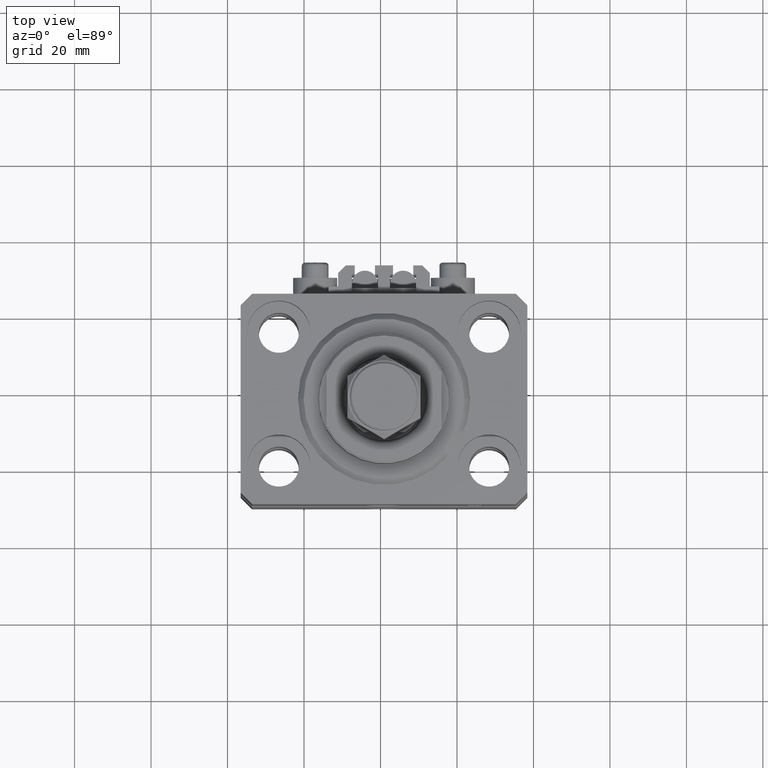
[diagram: clean part render]
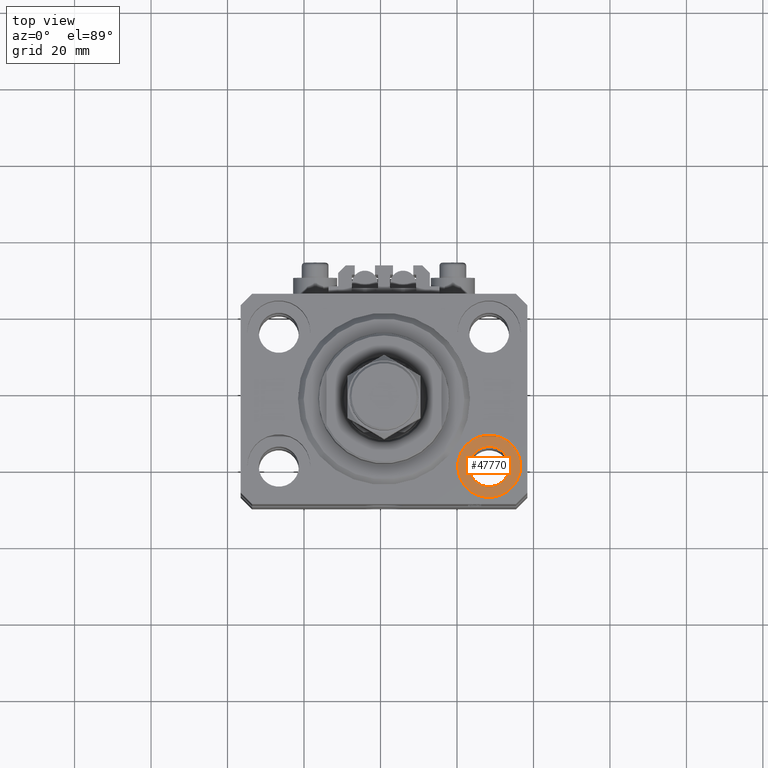
[diagram: same view with one face highlighted and labeled with its STEP entity id]
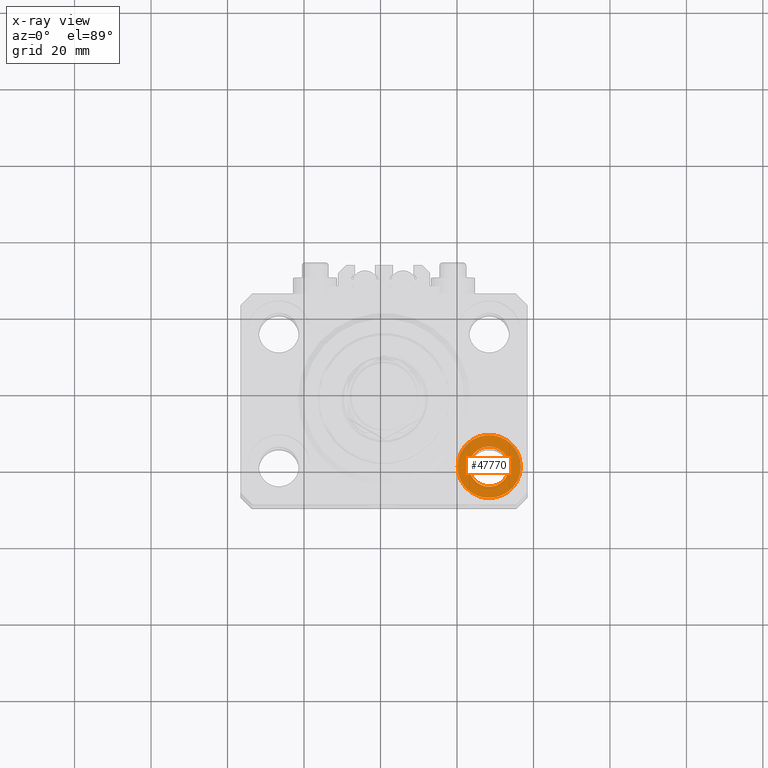
[diagram: x-ray of the same camera — body ghosted, the highlighted face saturated]
A machine part, top view. The second image highlights one B-rep face of the part: STEP entity #47770.
The next image is the same camera in x-ray: the body ghosted, the highlighted face saturated — about 0% of this face is hidden behind the body in this view.
In plain terms, the highlighted planar face has unit normal (0, 0, 1).
Its self-contained STEP definition (entity closure, byte-faithful):
#193 = AXIS2_PLACEMENT_3D ( 'NONE', #312, #41706, #7544 ) ;
#312 = CARTESIAN_POINT ( 'NONE',  ( 27.50000000000000355, -17.50000000000000000, -11.00000000000000000 ) ) ;
#2012 = CARTESIAN_POINT ( 'NONE',  ( 27.50000000000000355, -17.50000000000000000, -11.00000000000000000 ) ) ;
#2184 = AXIS2_PLACEMENT_3D ( 'NONE', #39955, #16523, #24748 ) ;
#2365 = VERTEX_POINT ( 'NONE', #12101 ) ;
#3748 = CIRCLE ( 'NONE', #38839, 8.250000000000000000 ) ;
#6255 = DIRECTION ( 'NONE',  ( 0.000000000000000000, 0.000000000000000000, 1.000000000000000000 ) ) ;
#6957 = EDGE_CURVE ( 'NONE', #19748, #27759, #3748, .T. ) ;
#7544 = DIRECTION ( 'NONE',  ( 1.000000000000000000, 0.000000000000000000, -0.000000000000000000 ) ) ;
#9341 = CIRCLE ( 'NONE', #2184, 5.249999999999997335 ) ;
#10459 = CIRCLE ( 'NONE', #39145, 5.249999999999997335 ) ;
#11296 = FACE_BOUND ( 'NONE', #40335, .T. ) ;
#12101 = CARTESIAN_POINT ( 'NONE',  ( 22.25000000000000711, -17.50000000000000000, -11.00000000000000000 ) ) ;
#13618 = AXIS2_PLACEMENT_3D ( 'NONE', #16125, #23855, #27105 ) ;
#13981 = DIRECTION ( 'NONE',  ( 1.000000000000000000, 0.000000000000000000, 0.000000000000000000 ) ) ;
#16016 = CARTESIAN_POINT ( 'NONE',  ( 32.75000000000000000, -17.50000000000000000, -11.00000000000000000 ) ) ;
#16125 = CARTESIAN_POINT ( 'NONE',  ( 27.50000000000000355, -17.50000000000000000, -11.00000000000000000 ) ) ;
#16523 = DIRECTION ( 'NONE',  ( 0.000000000000000000, 0.000000000000000000, 1.000000000000000000 ) ) ;
#17585 = EDGE_CURVE ( 'NONE', #27759, #19748, #35126, .T. ) ;
#18191 = DIRECTION ( 'NONE',  ( 0.000000000000000000, 0.000000000000000000, 1.000000000000000000 ) ) ;
#18472 = EDGE_CURVE ( 'NONE', #2365, #18679, #10459, .T. ) ;
#18679 = VERTEX_POINT ( 'NONE', #16016 ) ;
#19748 = VERTEX_POINT ( 'NONE', #37722 ) ;
#21182 = CARTESIAN_POINT ( 'NONE',  ( 27.50000000000000355, -17.50000000000000000, -11.00000000000000000 ) ) ;
#22538 = ORIENTED_EDGE ( 'NONE', *, *, #17585, .T. ) ;
#22992 = FACE_OUTER_BOUND ( 'NONE', #45572, .T. ) ;
#23855 = DIRECTION ( 'NONE',  ( 0.000000000000000000, 0.000000000000000000, 1.000000000000000000 ) ) ;
#24748 = DIRECTION ( 'NONE',  ( 1.000000000000000000, 0.000000000000000000, 0.000000000000000000 ) ) ;
#26496 = PLANE ( 'NONE',  #193 ) ;
#27105 = DIRECTION ( 'NONE',  ( 1.000000000000000000, 0.000000000000000000, 0.000000000000000000 ) ) ;
#27759 = VERTEX_POINT ( 'NONE', #42511 ) ;
#32423 = DIRECTION ( 'NONE',  ( 1.000000000000000000, 0.000000000000000000, 0.000000000000000000 ) ) ;
#32569 = EDGE_CURVE ( 'NONE', #18679, #2365, #9341, .T. ) ;
#35126 = CIRCLE ( 'NONE', #13618, 8.250000000000000000 ) ;
#37722 = CARTESIAN_POINT ( 'NONE',  ( 35.75000000000000711, -17.50000000000000000, -11.00000000000000000 ) ) ;
#38839 = AXIS2_PLACEMENT_3D ( 'NONE', #21182, #18191, #32423 ) ;
#39145 = AXIS2_PLACEMENT_3D ( 'NONE', #2012, #6255, #13981 ) ;
#39955 = CARTESIAN_POINT ( 'NONE',  ( 27.50000000000000355, -17.50000000000000000, -11.00000000000000000 ) ) ;
#40335 = EDGE_LOOP ( 'NONE', ( #46565, #46252 ) ) ;
#41706 = DIRECTION ( 'NONE',  ( 0.000000000000000000, 0.000000000000000000, 1.000000000000000000 ) ) ;
#42511 = CARTESIAN_POINT ( 'NONE',  ( 19.25000000000000000, -17.50000000000000000, -11.00000000000000000 ) ) ;
#42656 = ORIENTED_EDGE ( 'NONE', *, *, #6957, .T. ) ;
#45572 = EDGE_LOOP ( 'NONE', ( #42656, #22538 ) ) ;
#46252 = ORIENTED_EDGE ( 'NONE', *, *, #18472, .F. ) ;
#46565 = ORIENTED_EDGE ( 'NONE', *, *, #32569, .F. ) ;
#47770 = ADVANCED_FACE ( 'NONE', ( #11296, #22992 ), #26496, .T. ) ;